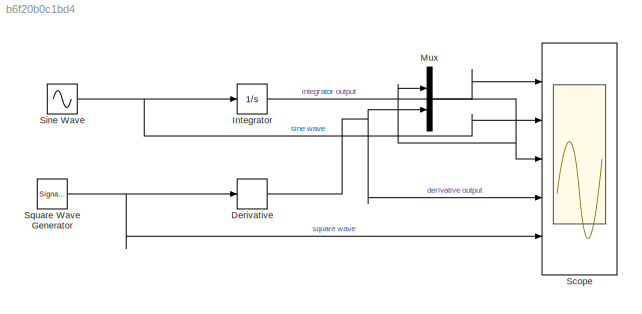
MODEL slx_b6f20b0c1bd4
KIND model
CONFIG AbsTol = auto
CONFIG EnableMultiTasking = off
CONFIG FixedStep = auto
CONFIG MaxStep = auto
CONFIG MinStep = auto
CONFIG RelTol = 1e-3
CONFIG SampleTimeConstraint = Unconstrained
CONFIG Solver = VariableStepAuto
CONFIG SolverName = VariableStepAuto
CONFIG StartTime = 0.0
CONFIG StopTime = 10.0
BLOCK [Derivative] Derivative
BLOCK [Integrator] Integrator
  InitialCondition = 5
  Ports = [1, 1]
BLOCK [Mux] Mux
  DisplayOption = bar
  Inputs = 2
  Ports = [2, 1]
BLOCK [Scope] Scope
  Floating = off
  NumInputPorts = 5
  Ports = [5]
  ScopeSpecificationString = Simulink.scopes.TimeScopeBlockCfg('CurrentConfiguration', extmgr.ConfigurationSet(extmgr.Configuration('Core','General UI',true),extmgr.Configuration('Core','Source UI',true),extmgr.Configuration('Sources','WiredSimulink',true),extmgr.Configuration('Visuals','Time Domain',true,'SerializedDisplays',{struct('MinYLimReal','-250.00000','MaxYLimReal','250.00000','YLabelReal','','MinYLimMag',' 0.00000',...<+4915ch>
BLOCK [Sin] Sine Wave
  Amplitude = 20
  Ports = [0, 1]
  SampleTime = 0
BLOCK [SignalGenerator] Square Wave Generator
  Amplitude = 20
  Ports = [0, 1]
  Units = rad/sec
  WaveForm = square
NET Derivative:1 -> Mux:2, Scope:4
NET Integrator:1 -> Mux:1, Scope:3
LINE Mux:1 -> Scope:1
NET Sine Wave:1 -> Integrator:1, Scope:2
NET Square Wave Generator:1 -> Derivative:1, Scope:5
note: NET lines group one-source signal fan-out (src -> all destinations, sorted); 1:1 wires keep LINE
